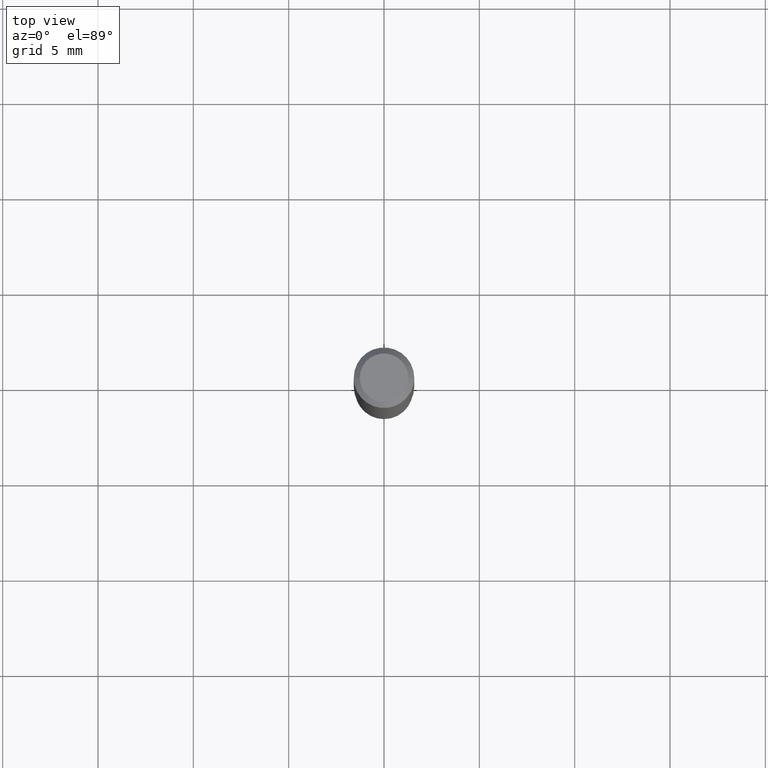
[diagram: clean part render]
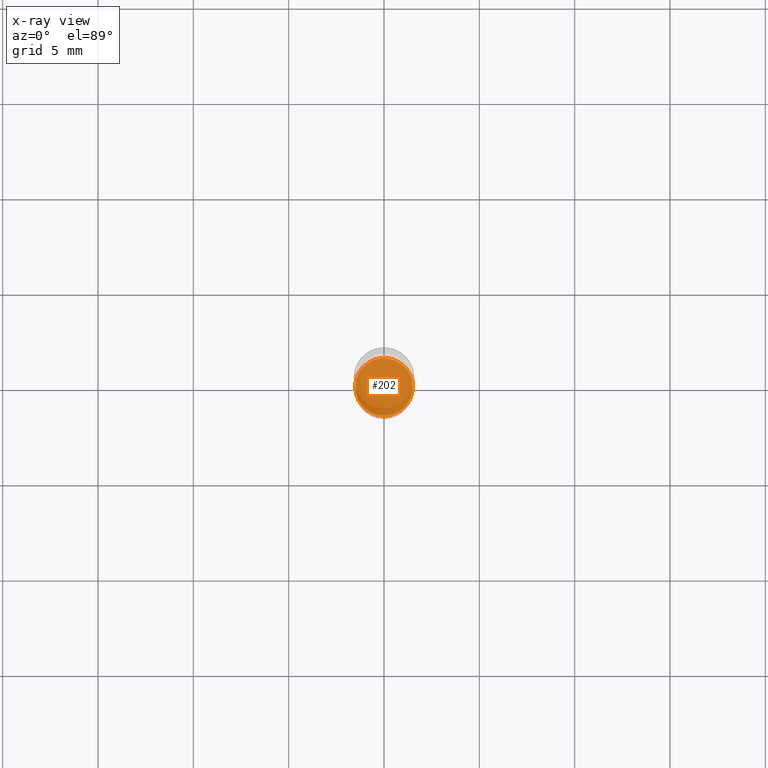
[diagram: x-ray — body ghosted, one internal face saturated and labeled with its STEP entity id]
A machine part, top view, then the same camera in x-ray: the body is ghosted and one INTERNAL B-rep face — a face not visible from any outside direction — is saturated and labeled: STEP entity #202.
In plain terms, the highlighted planar face has unit normal (-0, 0, 1).
Its self-contained STEP definition (entity closure, byte-faithful):
#18 = FACE_OUTER_BOUND ( 'NONE', #156, .T. ) ;
#30 = EDGE_CURVE ( 'NONE', #476, #423, #308, .T. ) ;
#69 = CARTESIAN_POINT ( 'NONE',  ( -0.05949999999999999040, -3.415207317776089703E-15, -1.100000000000000089 ) ) ;
#76 = CIRCLE ( 'NONE', #242, 0.05949999999999999040 ) ;
#124 = AXIS2_PLACEMENT_3D ( 'NONE', #329, #474, #217 ) ;
#129 = PLANE ( 'NONE',  #192 ) ;
#153 = ORIENTED_EDGE ( 'NONE', *, *, #30, .F. ) ;
#156 = EDGE_LOOP ( 'NONE', ( #306, #153 ) ) ;
#192 = AXIS2_PLACEMENT_3D ( 'NONE', #208, #359, #245 ) ;
#202 = ADVANCED_FACE ( 'NONE', ( #18 ), #129, .F. ) ;
#208 = CARTESIAN_POINT ( 'NONE',  ( 2.690015686803650369E-29, -3.840629472727460101E-15, -1.100000000000000089 ) ) ;
#217 = DIRECTION ( 'NONE',  ( 1.000000000000000000, -6.982962677686269077E-15, 0.000000000000000000 ) ) ;
#218 = CARTESIAN_POINT ( 'NONE',  ( 0.05949999999999999040, -4.256115752049792939E-15, -1.100000000000000089 ) ) ;
#242 = AXIS2_PLACEMENT_3D ( 'NONE', #283, #428, #247 ) ;
#245 = DIRECTION ( 'NONE',  ( 1.000000000000000000, -6.982962677686265922E-15, 4.876176775795935793E-29 ) ) ;
#247 = DIRECTION ( 'NONE',  ( 1.000000000000000000, -6.982962677686269077E-15, 0.000000000000000000 ) ) ;
#283 = CARTESIAN_POINT ( 'NONE',  ( 2.690015686803650369E-29, -3.840629472727460101E-15, -1.100000000000000089 ) ) ;
#306 = ORIENTED_EDGE ( 'NONE', *, *, #313, .F. ) ;
#308 = CIRCLE ( 'NONE', #124, 0.05949999999999999040 ) ;
#313 = EDGE_CURVE ( 'NONE', #423, #476, #76, .T. ) ;
#329 = CARTESIAN_POINT ( 'NONE',  ( 2.690015686803650369E-29, -3.840629472727460101E-15, -1.100000000000000089 ) ) ;
#359 = DIRECTION ( 'NONE',  ( -2.438088387897960049E-29, 3.491481338843145188E-15, 1.000000000000000000 ) ) ;
#423 = VERTEX_POINT ( 'NONE', #218 ) ;
#428 = DIRECTION ( 'NONE',  ( -2.445468806185136597E-29, 3.491481338843145583E-15, 1.000000000000000000 ) ) ;
#474 = DIRECTION ( 'NONE',  ( -2.445468806185136597E-29, 3.491481338843145583E-15, 1.000000000000000000 ) ) ;
#476 = VERTEX_POINT ( 'NONE', #69 ) ;